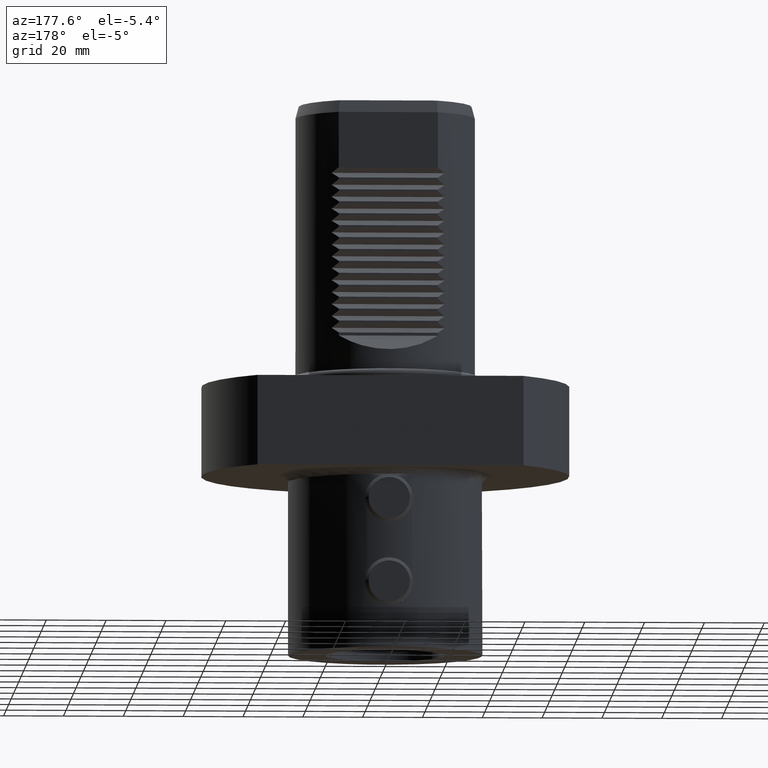
[diagram: clean part render]
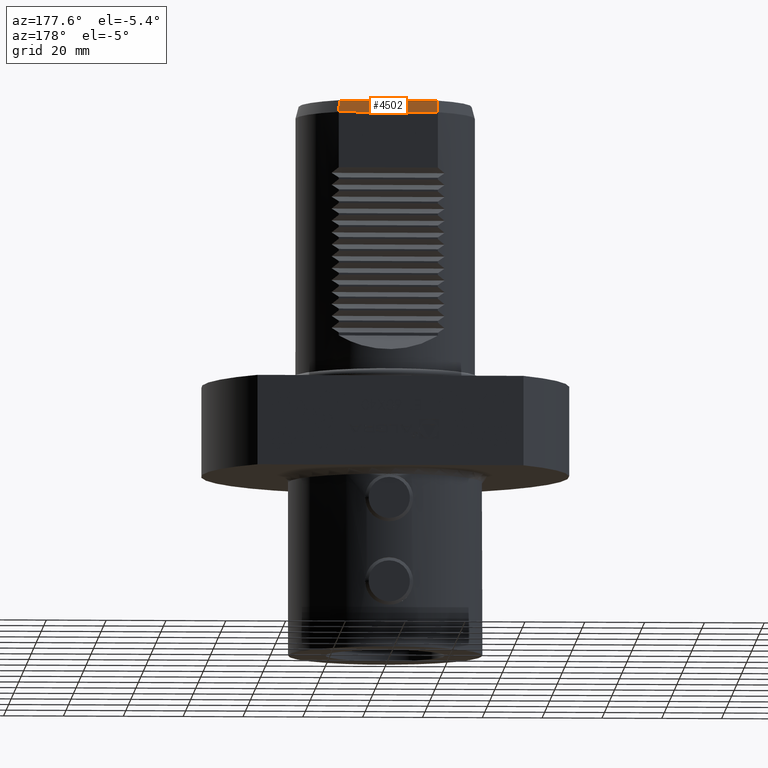
[diagram: same view with one face highlighted and labeled with its STEP entity id]
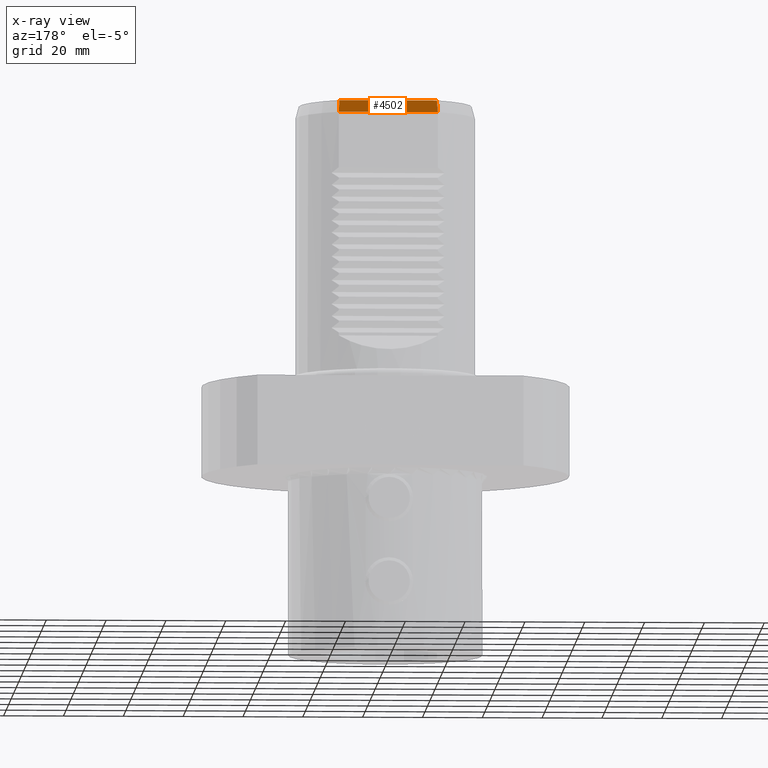
[diagram: x-ray of the same camera — body ghosted, the highlighted face saturated]
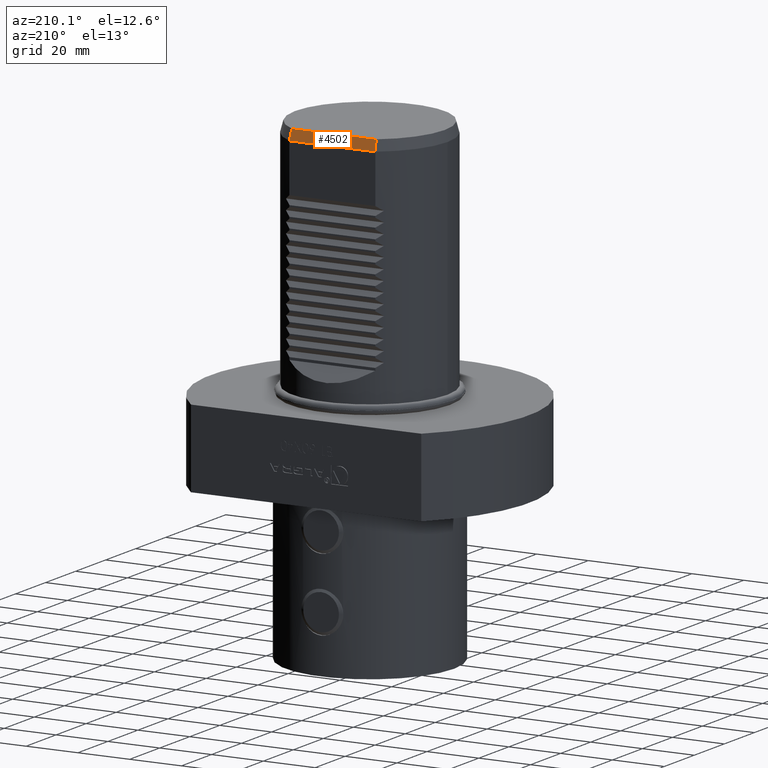
[diagram: same view with one face highlighted and labeled with its STEP entity id]
A machine part, auxiliary view. The second image highlights one B-rep face of the part: STEP entity #4502.
The next image is the same camera in x-ray: the body ghosted, the highlighted face saturated — about 0% of this face is hidden behind the body in this view.
A second angle (auxiliary view) of the same face is appended — the face is thin or edge-on in the first view.
In plain terms, the highlighted planar face has unit normal (0, 0.9659, 0.2588).
Its self-contained STEP definition (entity closure, byte-faithful):
#50 = ORIENTED_EDGE ( 'NONE', *, *, #9933, .T. ) ;
#745 = VERTEX_POINT ( 'NONE', #4914 ) ;
#1417 = LINE ( 'NONE', #5662, #11488 ) ;
#1535 = EDGE_CURVE ( 'NONE', #5015, #2329, #7299, .T. ) ;
#2329 = VERTEX_POINT ( 'NONE', #6881 ) ;
#2699 = DIRECTION ( 'NONE',  ( -1.000000000000000000, 4.440892098500630106E-16, 4.440892098500630106E-16 ) ) ;
#2792 = DIRECTION ( 'NONE',  ( 5.438959822042071928E-16, 0.9659258262890682012, 0.2588190451025211281 ) ) ;
#3543 = CARTESIAN_POINT ( 'NONE',  ( 16.58312395177700083, 25.00000000000000000, 90.00000000000000000 ) ) ;
#4502 = ADVANCED_FACE ( 'Defeature completata1_30', ( #11375 ), #12525, .T. ) ;
#4670 = VERTEX_POINT ( 'NONE', #8689 ) ;
#4744 = DIRECTION ( 'NONE',  ( 1.000000000000000000, -4.440892098500630106E-16, -4.440892098500630106E-16 ) ) ;
#4914 = CARTESIAN_POINT ( 'NONE',  ( -16.25675343673369966, 23.92820323027550344, 94.00000000000000000 ) ) ;
#5013 = VECTOR ( 'NONE', #2699, 1000.000000000000000 ) ;
#5015 = VERTEX_POINT ( 'NONE', #3543 ) ;
#5532 = EDGE_CURVE ( 'NONE', #4670, #5015, #6578, .T. ) ;
#5662 = CARTESIAN_POINT ( 'NONE',  ( 5.237064259157069904E-14, 23.92820323027550344, 94.00000000000000000 ) ) ;
#5981 = DIRECTION ( 'NONE',  ( 1.000000000000000000, 0.000000000000000000, -2.101452704103610022E-15 ) ) ;
#6578 = B_SPLINE_CURVE_WITH_KNOTS ( 'NONE', 2,
 ( #7119, #9346, #13765 ),
 .UNSPECIFIED., .F., .F.,
 ( 3, 3 ),
 ( 0.000000000000000000, 0.4153946153076609749 ),
 .UNSPECIFIED. ) ;
#6881 = CARTESIAN_POINT ( 'NONE',  ( -16.58312395177690135, 25.00000000000000000, 90.00000000000000000 ) ) ;
#7119 = CARTESIAN_POINT ( 'NONE',  ( 16.25675343673379913, 23.92820323027550344, 94.00000000000000000 ) ) ;
#7299 = LINE ( 'NONE', #11656, #5013 ) ;
#7796 = CARTESIAN_POINT ( 'NONE',  ( -16.25675343673369966, 23.92820323027550344, 94.00000000000000000 ) ) ;
#8151 = ORIENTED_EDGE ( 'NONE', *, *, #5532, .T. ) ;
#8189 = CARTESIAN_POINT ( 'NONE',  ( 5.172045086216389315E-14, 24.46410161513779968, 92.00000000000000000 ) ) ;
#8207 = AXIS2_PLACEMENT_3D ( 'NONE', #8189, #2792, #5981 ) ;
#8689 = CARTESIAN_POINT ( 'NONE',  ( 16.25675343673379913, 23.92820323027550344, 94.00000000000000000 ) ) ;
#9346 = CARTESIAN_POINT ( 'NONE',  ( 16.41993869423560071, 24.45877572941819977, 92.01987647610060606 ) ) ;
#9782 = EDGE_LOOP ( 'NONE', ( #50, #13321, #8151, #10822 ) ) ;
#9933 = EDGE_CURVE ( 'NONE', #2329, #745, #13747, .T. ) ;
#10822 = ORIENTED_EDGE ( 'NONE', *, *, #1535, .T. ) ;
#11375 = FACE_OUTER_BOUND ( 'NONE', #9782, .T. ) ;
#11488 = VECTOR ( 'NONE', #4744, 1000.000000000000000 ) ;
#11656 = CARTESIAN_POINT ( 'NONE',  ( 5.107025913275719455E-14, 25.00000000000000000, 90.00000000000000000 ) ) ;
#12136 = CARTESIAN_POINT ( 'NONE',  ( -16.41993869423550123, 24.45877572941819977, 92.01987647610060606 ) ) ;
#12207 = CARTESIAN_POINT ( 'NONE',  ( -16.58312395177690135, 25.00000000000000000, 90.00000000000000000 ) ) ;
#12525 = PLANE ( 'NONE',  #8207 ) ;
#13321 = ORIENTED_EDGE ( 'NONE', *, *, #13615, .T. ) ;
#13615 = EDGE_CURVE ( 'NONE', #745, #4670, #1417, .T. ) ;
#13747 = B_SPLINE_CURVE_WITH_KNOTS ( 'NONE', 2,
 ( #12207, #12136, #7796 ),
 .UNSPECIFIED., .F., .F.,
 ( 3, 3 ),
 ( 0.000000000000000000, 0.4153946153076609749 ),
 .UNSPECIFIED. ) ;
#13765 = CARTESIAN_POINT ( 'NONE',  ( 16.58312395177700083, 25.00000000000000000, 90.00000000000000000 ) ) ;